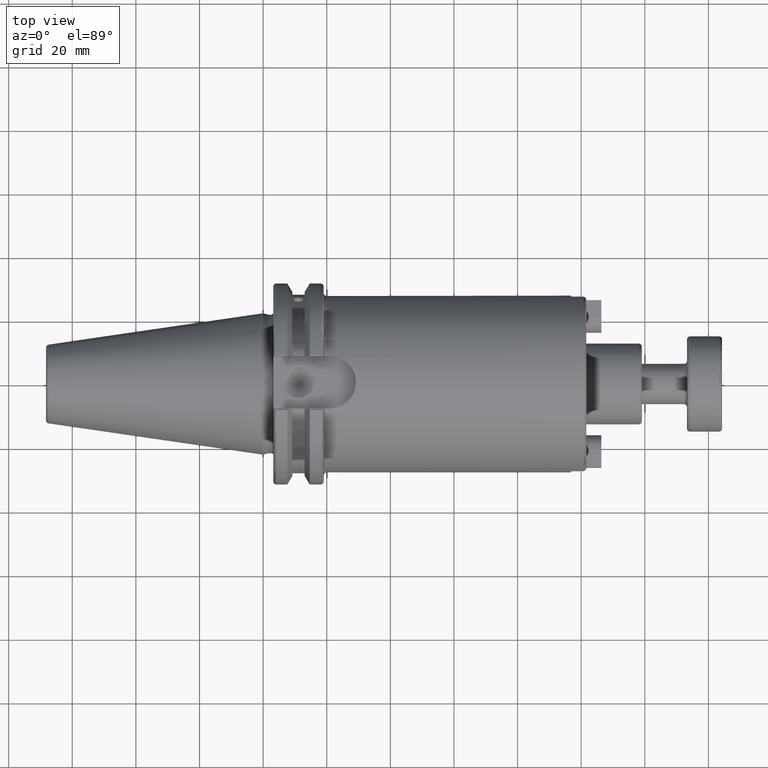
[diagram: clean part render]
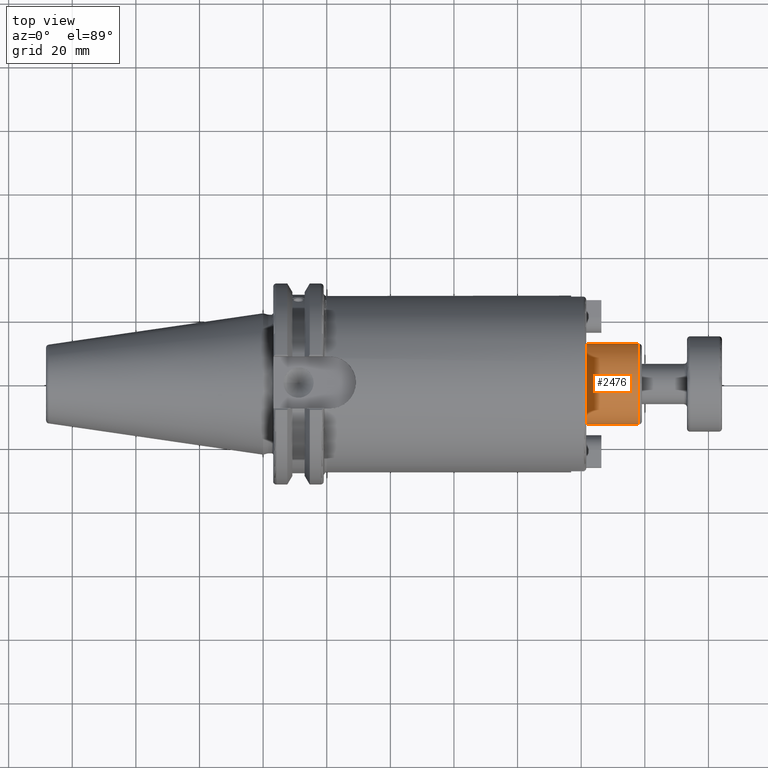
[diagram: same view with one face highlighted and labeled with its STEP entity id]
A machine part, top view. The second image highlights one B-rep face of the part: STEP entity #2476.
In plain terms, the highlighted cylindrical surface (bore or boss wall) has radius 12.7 mm, axis along (1, 0, 0).
Its self-contained STEP definition (entity closure, byte-faithful):
#117=CYLINDRICAL_SURFACE('',#2756,12.7);
#222=CIRCLE('',#2752,12.7);
#223=CIRCLE('',#2753,12.7);
#225=CIRCLE('',#2757,12.7);
#347=FACE_OUTER_BOUND('',#499,.T.);
#499=EDGE_LOOP('',(#1749,#1750,#1751,#1752,#1753));
#671=LINE('',#4109,#835);
#835=VECTOR('',#3146,12.7);
#1061=VERTEX_POINT('',#4099);
#1062=VERTEX_POINT('',#4101);
#1064=VERTEX_POINT('',#4108);
#1328=EDGE_CURVE('',#1061,#1062,#222,.T.);
#1329=EDGE_CURVE('',#1062,#1061,#223,.T.);
#1331=EDGE_CURVE('',#1062,#1064,#671,.T.);
#1332=EDGE_CURVE('',#1064,#1064,#225,.T.);
#1749=ORIENTED_EDGE('',*,*,#1329,.F.);
#1750=ORIENTED_EDGE('',*,*,#1331,.T.);
#1751=ORIENTED_EDGE('',*,*,#1332,.T.);
#1752=ORIENTED_EDGE('',*,*,#1331,.F.);
#1753=ORIENTED_EDGE('',*,*,#1328,.F.);
#2476=ADVANCED_FACE('',(#347),#117,.T.);
#2752=AXIS2_PLACEMENT_3D('',#4102,#3136,#3137);
#2753=AXIS2_PLACEMENT_3D('',#4103,#3138,#3139);
#2756=AXIS2_PLACEMENT_3D('',#4107,#3144,#3145);
#2757=AXIS2_PLACEMENT_3D('',#4110,#3147,#3148);
#3136=DIRECTION('center_axis',(1.,0.,0.));
#3137=DIRECTION('ref_axis',(0.,-1.,1.83697019872103E-16));
#3138=DIRECTION('center_axis',(1.,0.,0.));
#3139=DIRECTION('ref_axis',(0.,-1.,1.83697019872103E-16));
#3144=DIRECTION('center_axis',(1.,0.,0.));
#3145=DIRECTION('ref_axis',(0.,1.,0.));
#3146=DIRECTION('',(-1.,0.,0.));
#3147=DIRECTION('center_axis',(1.,0.,0.));
#3148=DIRECTION('ref_axis',(0.,0.,-1.));
#4099=CARTESIAN_POINT('',(118.08,-1.55530143491714E-15,12.7));
#4101=CARTESIAN_POINT('',(118.08,-12.7,-1.55530143491714E-15));
#4102=CARTESIAN_POINT('Origin',(118.08,0.,0.));
#4103=CARTESIAN_POINT('Origin',(118.08,0.,0.));
#4107=CARTESIAN_POINT('Origin',(110.34,0.,0.));
#4108=CARTESIAN_POINT('',(101.6,-12.7,-1.55530143491714E-15));
#4109=CARTESIAN_POINT('',(110.34,-12.7,-1.55530143491714E-15));
#4110=CARTESIAN_POINT('Origin',(101.6,0.,0.));